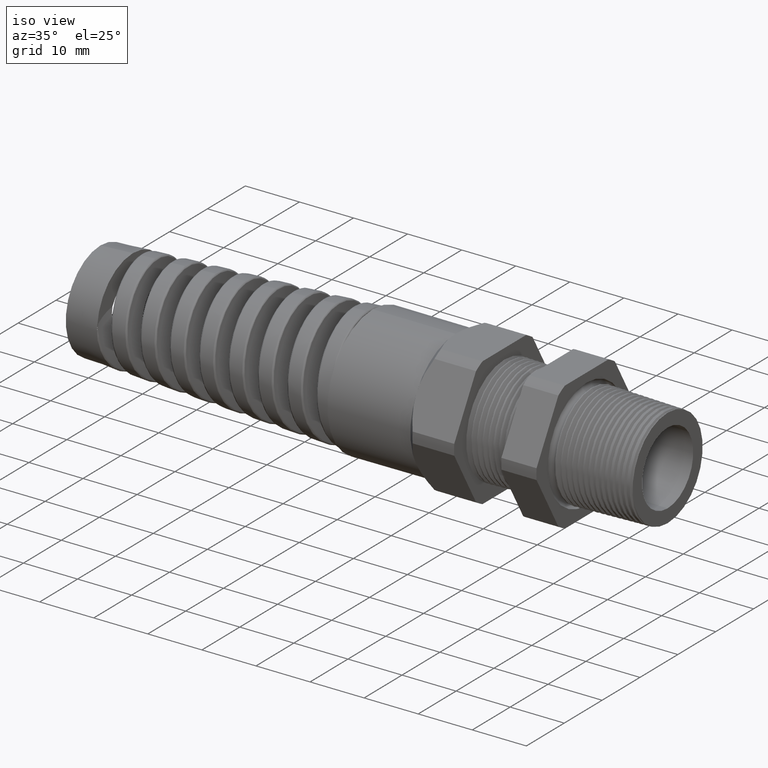
[diagram: clean part render]
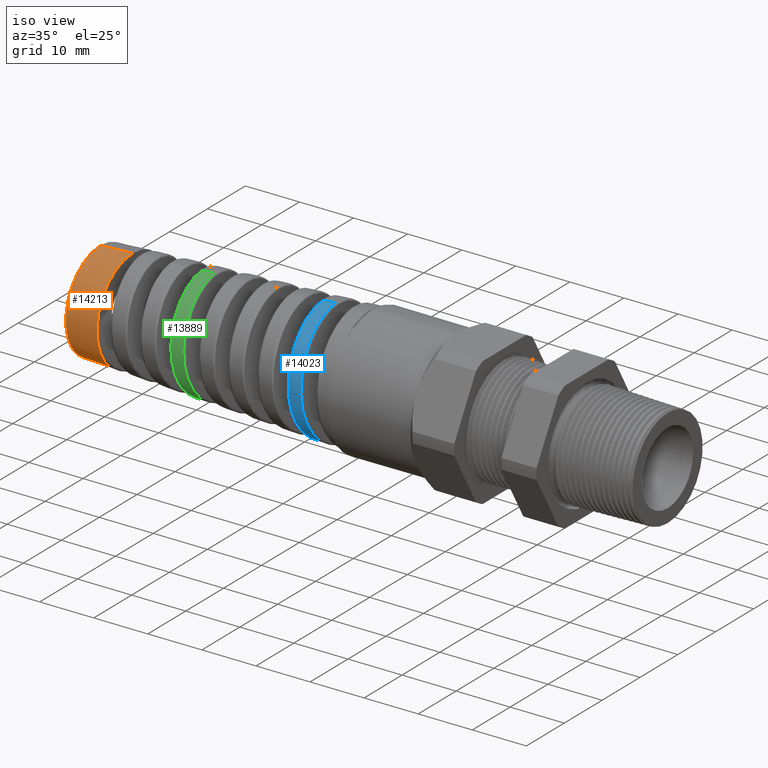
[diagram: same view with three faces highlighted in distinct colors, each labeled with its STEP entity id]
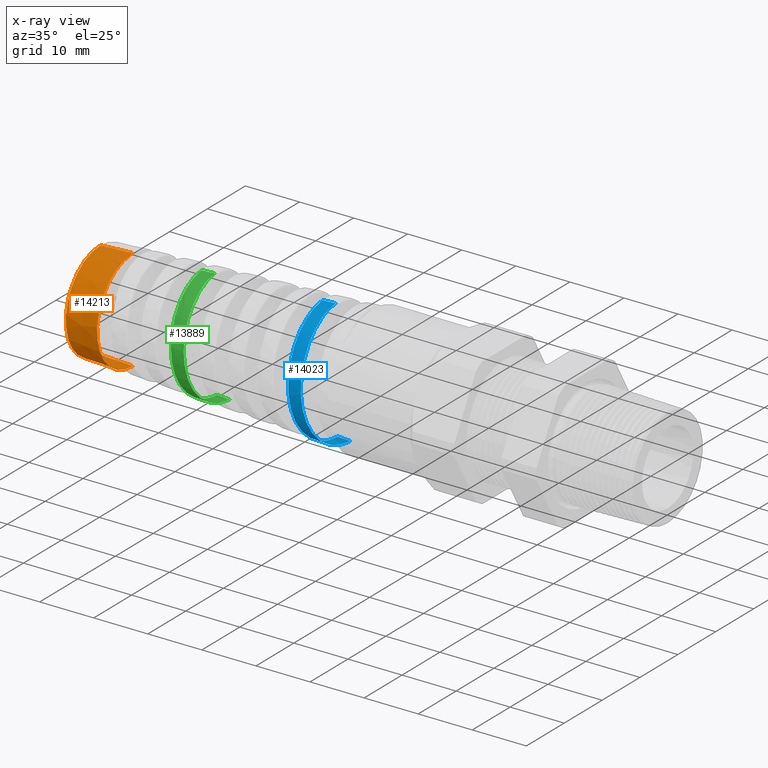
[diagram: x-ray of the same camera — body ghosted, the three highlighted faces saturated]
A machine part, iso view with three faces highlighted in distinct colors.
The next image is the same camera in x-ray (body ghosted, the three faces saturated) — at least one of them is partly hidden behind the body in this view.
Their STEP definitions:

[orange] entity #14213 — the highlighted conical surface has half-angle 3 deg.
#891 = CARTESIAN_POINT ( 'NONE',  ( -3.613780000000000200, -4.556107977781115500E-017, -0.3720344495207316100 ) ) ;
#3071 = CARTESIAN_POINT ( 'NONE',  ( -3.613780000000000200, -0.3666973055244234200, -0.06279106426332896300 ) ) ;
#3072 = DIRECTION ( 'NONE',  ( 0.0000000000000000000, 0.0000000000000000000, -1.000000000000000000 ) ) ;
#3073 = DIRECTION ( 'NONE',  ( 1.000000000000000000, 0.0000000000000000000, 0.0000000000000000000 ) ) ;
#3074 = CARTESIAN_POINT ( 'NONE',  ( -3.613780000000000200, 0.0000000000000000000, 0.0000000000000000000 ) ) ;
#3075 = AXIS2_PLACEMENT_3D ( 'NONE', #3074, #3073, #3072 ) ;
#3081 = CIRCLE ( 'NONE', #3075, 0.3720344495207378300 ) ;
#5181 = DIRECTION ( 'NONE',  ( 1.000000000000000000, 0.0000000000000000000, 0.0000000000000000000 ) ) ;
#5183 = CARTESIAN_POINT ( 'NONE',  ( -3.613780000000000200, 0.0000000000000000000, 0.0000000000000000000 ) ) ;
#5184 = AXIS2_PLACEMENT_3D ( 'NONE', #5183, #5181, #5559 ) ;
#5456 = DIRECTION ( 'NONE',  ( 0.9986295347545738300, 0.0000000000000000000, 0.05233595624294395300 ) ) ;
#5457 = VECTOR ( 'NONE', #5456, 39.37007874015748900 ) ;
#5458 = CARTESIAN_POINT ( 'NONE',  ( -3.613780000000000200, 0.0000000000000000000, 0.3720344495207316100 ) ) ;
#5459 = LINE ( 'NONE', #5458, #5457 ) ;
#5460 = CARTESIAN_POINT ( 'NONE',  ( -3.613780000000000200, 0.0000000000000000000, 0.3720344495207316100 ) ) ;
#5461 = DIRECTION ( 'NONE',  ( 0.0000000000000000000, 0.0000000000000000000, 1.000000000000000000 ) ) ;
#5462 = DIRECTION ( 'NONE',  ( -1.000000000000000000, 0.0000000000000000000, 0.0000000000000000000 ) ) ;
#5463 = CARTESIAN_POINT ( 'NONE',  ( -3.613780000000000200, 0.0000000000000000000, 0.0000000000000000000 ) ) ;
#5464 = AXIS2_PLACEMENT_3D ( 'NONE', #5463, #5462, #5461 ) ;
#5465 = CIRCLE ( 'NONE', #5464, 0.3720344495207316100 ) ;
#5502 = CONICAL_SURFACE ( 'NONE', #5184, 0.3720344495207316100, 0.05235987755983000100 ) ;
#5503 = FACE_OUTER_BOUND ( 'NONE', #14214, .T. ) ;
#5548 = DIRECTION ( 'NONE',  ( 0.9986295347545738300, -6.409306129323724800E-018, -0.05233595624294395300 ) ) ;
#5549 = VECTOR ( 'NONE', #5548, 39.37007874015748900 ) ;
#5550 = CARTESIAN_POINT ( 'NONE',  ( -3.613780000000000200, -4.556107977781115500E-017, -0.3720344495207316100 ) ) ;
#5551 = LINE ( 'NONE', #5550, #5549 ) ;
#5552 = CARTESIAN_POINT ( 'NONE',  ( -3.850000472440945600, 0.0000000000000000000, 0.3596546591389108700 ) ) ;
#5553 = CARTESIAN_POINT ( 'NONE',  ( -3.850000472440945600, -4.480303624455055900E-017, -0.3596546591389108700 ) ) ;
#5554 = DIRECTION ( 'NONE',  ( 0.0000000000000000000, 0.0000000000000000000, 1.000000000000000000 ) ) ;
#5555 = DIRECTION ( 'NONE',  ( -1.000000000000000000, 0.0000000000000000000, 0.0000000000000000000 ) ) ;
#5556 = CARTESIAN_POINT ( 'NONE',  ( -3.850000472440945600, 0.0000000000000000000, 0.0000000000000000000 ) ) ;
#5557 = AXIS2_PLACEMENT_3D ( 'NONE', #5556, #5555, #5554 ) ;
#5558 = CIRCLE ( 'NONE', #5557, 0.3596546591389108700 ) ;
#5559 = DIRECTION ( 'NONE',  ( 0.0000000000000000000, 0.0000000000000000000, 1.000000000000000000 ) ) ;
#6283 = VERTEX_POINT ( 'NONE', #891 ) ;
#13900 = EDGE_CURVE ( 'NONE', #13901, #6283, #3081, .T. ) ;
#13901 = VERTEX_POINT ( 'NONE', #3071 ) ;
#14195 = EDGE_CURVE ( 'NONE', #13901, #14196, #5465, .T. ) ;
#14196 = VERTEX_POINT ( 'NONE', #5460 ) ;
#14197 = ORIENTED_EDGE ( 'NONE', *, *, #14198, .F. ) ;
#14198 = EDGE_CURVE ( 'NONE', #14218, #14196, #5459, .T. ) ;
#14213 = ADVANCED_FACE ( 'NONE', ( #5503 ), #5502, .T. ) ;
#14214 = EDGE_LOOP ( 'NONE', ( #14215, #14219, #14221, #14222, #14197 ) ) ;
#14215 = ORIENTED_EDGE ( 'NONE', *, *, #14216, .F. ) ;
#14216 = EDGE_CURVE ( 'NONE', #14217, #14218, #5558, .T. ) ;
#14217 = VERTEX_POINT ( 'NONE', #5553 ) ;
#14218 = VERTEX_POINT ( 'NONE', #5552 ) ;
#14219 = ORIENTED_EDGE ( 'NONE', *, *, #14220, .T. ) ;
#14220 = EDGE_CURVE ( 'NONE', #14217, #6283, #5551, .T. ) ;
#14221 = ORIENTED_EDGE ( 'NONE', *, *, #13900, .F. ) ;
#14222 = ORIENTED_EDGE ( 'NONE', *, *, #14195, .T. ) ;

[blue] entity #14023 — the highlighted conical surface has half-angle 2.5 deg.
#2672 = CARTESIAN_POINT ( 'NONE',  ( -2.136958732337116200, -9.837559784406085300E-016, 0.4365138585742439600 ) ) ;
#2674 = DIRECTION ( 'NONE',  ( 0.9990482215818576900, 5.341834311772765600E-018, 0.04361938736533634700 ) ) ;
#2675 = VECTOR ( 'NONE', #2674, 39.37007874015748100 ) ;
#2676 = CARTESIAN_POINT ( 'NONE',  ( -1.369999999999999900, 5.755839955992558400E-017, 0.4699999999999998600 ) ) ;
#2677 = LINE ( 'NONE', #2676, #2675 ) ;
#2678 = CARTESIAN_POINT ( 'NONE',  ( -2.231331900771360600, 1.538719108245146800E-015, 0.4323934370551409900 ) ) ;
#3182 = CARTESIAN_POINT ( 'NONE',  ( -2.121162570605299000, -1.098488534835225200E-012, -0.4372035338897904400 ) ) ;
#3304 = CARTESIAN_POINT ( 'NONE',  ( -2.215164198628793500, -0.1930681999559965000, 0.3887457103996759800 ) ) ;
#3305 = CARTESIAN_POINT ( 'NONE',  ( -2.219810310005696500, -0.1400110124368382800, 0.4106334170682022200 ) ) ;
#3306 = CARTESIAN_POINT ( 'NONE',  ( -2.222096644440896700, -0.1128320769876093200, 0.4187895851010250400 ) ) ;
#3307 = CARTESIAN_POINT ( 'NONE',  ( -2.225542304219461500, -0.07112939013308872100, 0.4269942274725931400 ) ) ;
#3308 = CARTESIAN_POINT ( 'NONE',  ( -2.226693341524334200, -0.05707161816231418700, 0.4290525756093521700 ) ) ;
#3309 = CARTESIAN_POINT ( 'NONE',  ( -2.229010475305106100, -0.02863524671693102800, 0.4317821038072549000 ) ) ;
#3310 = CARTESIAN_POINT ( 'NONE',  ( -2.230177561496665500, -0.01423940330200604300, 0.4324438365963104700 ) ) ;
#3311 = CARTESIAN_POINT ( 'NONE',  ( -2.231331900771360600, 1.538719108245146800E-015, 0.4323934370551409900 ) ) ;
#3312 = B_SPLINE_CURVE_WITH_KNOTS ( 'NONE', 3,
 ( #3311, #3310, #3309, #3308, #3307, #3306, #3305, #3304, #3376, #3375, #3374, #3373, #3372, #3371, #3370, #3369, #3368, #3367, #3366, #3365, #3364, #3363, #3362, #3361, #3360, #3359, #3358, #3357, #3356, #3355, #3354, #3353, #3352, #3351, #3350, #3349, #3348, #3347, #3346, #3345, #3344, #3343, #3342, #3341, #3340, #3339, #3338, #3337, #3336 ),
 .UNSPECIFIED., .F., .F.,
 ( 4, 2, 2, 2, 2, 2, 2, 2, 2, 2, 2, 1, 2, 2, 2, 2, 2, 2, 2, 2, 2, 2, 2, 2, 4 ),
 ( 0.4070003021110117900, 0.4080960166227987100, 0.4091917311345855700, 0.4113831601581593400, 0.4135745891817331200, 0.4146703036935200400, 0.4157660182053069000, 0.4179574472288806700, 0.4201488762524544500, 0.4223403052760282300, 0.4234360197878150900, 0.4245317342996020000, 0.4256274488113889200, 0.4267231633231757800, 0.4289145923467495600, 0.4300103068585364700, 0.4311060213703233300, 0.4332974503938971100, 0.4343931649056840300, 0.4354888794174708900, 0.4376803084410446600, 0.4387760229528315800, 0.4398717374646185000, 0.4409674519764053600, 0.4420631664881922700 ),
 .UNSPECIFIED. ) ;
#3326 = DIRECTION ( 'NONE',  ( 0.9990482215818576900, 0.0000000000000000000, -0.04361938736533634700 ) ) ;
#3327 = VECTOR ( 'NONE', #3326, 39.37007874015748100 ) ;
#3328 = CARTESIAN_POINT ( 'NONE',  ( -1.369999999999999900, 0.0000000000000000000, -0.4699999999999998600 ) ) ;
#3329 = LINE ( 'NONE', #3328, #3327 ) ;
#3330 = CARTESIAN_POINT ( 'NONE',  ( -2.027124883345048400, -1.869557683998183800E-017, -0.4413093079845087900 ) ) ;
#3334 = B_SPLINE_CURVE_WITH_KNOTS ( 'NONE', 3,
 ( #3425, #3424, #3423, #3422, #3421, #3420, #3419, #3418, #3417, #3416, #3415, #3414, #3413, #3412, #3411, #3410, #3409, #3408, #3407, #3406, #3405, #3404, #3403, #3402, #3401, #3400, #3399, #3398, #3397, #3396, #3395, #3394, #3393, #3392, #3391, #3390, #3389, #3388, #3387, #3386, #3385, #3384, #3383, #3382, #3381, #3380, #3379 ),
 .UNSPECIFIED., .F., .F.,
 ( 4, 2, 2, 2, 2, 2, 2, 2, 2, 2, 2, 2, 2, 2, 2, 2, 2, 1, 2, 2, 2, 2, 2, 4 ),
 ( 0.04896264303005404300, 0.05007058619436918800, 0.05117852935868433300, 0.05339441568731462300, 0.05450235885162976700, 0.05561030201594491200, 0.05782618834457520200, 0.05893413150889034700, 0.06004207467320549200, 0.06225796100183578900, 0.06447384733046608600, 0.06558179049478123100, 0.06668973365909637600, 0.06890561998772668000, 0.07112150631635696900, 0.07333739264498725900, 0.07444533580930240400, 0.07555327897361756300, 0.07666122213793270800, 0.07776916530224786700, 0.07998505163087815700, 0.08109299479519330200, 0.08220093795950844700, 0.08441682428813875000 ),
 .UNSPECIFIED. ) ;
#3336 = CARTESIAN_POINT ( 'NONE',  ( -2.121162570605299000, -1.098488534835225200E-012, -0.4372035338897904400 ) ) ;
#3337 = CARTESIAN_POINT ( 'NONE',  ( -2.122307722575768700, -0.01428404826497243700, -0.4371535354749513900 ) ) ;
#3338 = CARTESIAN_POINT ( 'NONE',  ( -2.123461994771173300, -0.02867392872591293500, -0.4363940078195490700 ) ) ;
#3339 = CARTESIAN_POINT ( 'NONE',  ( -2.125747301005961500, -0.05700648581398074000, -0.4335031345675646200 ) ) ;
#3340 = CARTESIAN_POINT ( 'NONE',  ( -2.126884675444345300, -0.07102855163806357000, -0.4313745148217295000 ) ) ;
#3341 = CARTESIAN_POINT ( 'NONE',  ( -2.129158968301915000, -0.09878822629707476000, -0.4257735857633613300 ) ) ;
#3342 = CARTESIAN_POINT ( 'NONE',  ( -2.130295773213905200, -0.1125258418946660600, -0.4223012641926330900 ) ) ;
#3343 = CARTESIAN_POINT ( 'NONE',  ( -2.132577812223247300, -0.1397125792379831600, -0.4139973249003729400 ) ) ;
#3344 = CARTESIAN_POINT ( 'NONE',  ( -2.133728226000509500, -0.1532179816174283900, -0.4091416802657383800 ) ) ;
#3345 = CARTESIAN_POINT ( 'NONE',  ( -2.137177767931223800, -0.1928857375334525100, -0.3926216036488929300 ) ) ;
#3346 = CARTESIAN_POINT ( 'NONE',  ( -2.139445409813881800, -0.2178645187509352400, -0.3791938828618138200 ) ) ;
#3347 = CARTESIAN_POINT ( 'NONE',  ( -2.142864488760610500, -0.2531960935492967900, -0.3555444922316504100 ) ) ;
#3348 = CARTESIAN_POINT ( 'NONE',  ( -2.144006879427342600, -0.2646146623897422400, -0.3470725442497117900 ) ) ;
#3349 = CARTESIAN_POINT ( 'NONE',  ( -2.146306215823962700, -0.2867141772961570600, -0.3289189545009284000 ) ) ;
#3350 = CARTESIAN_POINT ( 'NONE',  ( -2.147461462260319600, -0.2973700383350258400, -0.3192455449343781800 ) ) ;
#3351 = CARTESIAN_POINT ( 'NONE',  ( -2.150892683788183700, -0.3275321031544757800, -0.2890433369855546800 ) ) ;
#3352 = CARTESIAN_POINT ( 'NONE',  ( -2.153159919452925400, -0.3454954461764356800, -0.2671508079096361300 ) ) ;
#3353 = CARTESIAN_POINT ( 'NONE',  ( -2.156596326336722900, -0.3692200728741776300, -0.2316795835015423000 ) ) ;
#3354 = CARTESIAN_POINT ( 'NONE',  ( -2.157753748041283200, -0.3766226371892531500, -0.2193456884420002800 ) ) ;
#3355 = CARTESIAN_POINT ( 'NONE',  ( -2.160057312630246300, -0.3901129738775704900, -0.1941169667445965500 ) ) ;
#3356 = CARTESIAN_POINT ( 'NONE',  ( -2.161200475665919100, -0.3961908378663421800, -0.1812598879046923600 ) ) ;
#3357 = CARTESIAN_POINT ( 'NONE',  ( -2.164623249965210500, -0.4124756207163128300, -0.1419814017503348000 ) ) ;
#3358 = CARTESIAN_POINT ( 'NONE',  ( -2.166896283676640300, -0.4207522629680438600, -0.1148594768215820400 ) ) ;
#3359 = CARTESIAN_POINT ( 'NONE',  ( -2.170360394199032600, -0.4291717028383267900, -0.07273244096105110900 ) ) ;
#3360 = CARTESIAN_POINT ( 'NONE',  ( -2.171517275481169100, -0.4312836674185713800, -0.05853042810672694200 ) ) ;
#3361 = CARTESIAN_POINT ( 'NONE',  ( -2.173809867068220200, -0.4340851861067502300, -0.03023886372500571600 ) ) ;
#3362 = CARTESIAN_POINT ( 'NONE',  ( -2.176091333293166400, -0.4354910292023556100, -0.001932762701584900800 ) ) ;
#3363 = CARTESIAN_POINT ( 'NONE',  ( -2.178375429326629300, -0.4341367655323870600, 0.02640009026625405500 ) ) ;
#3364 = CARTESIAN_POINT ( 'NONE',  ( -2.180672662773507100, -0.4313785164358923100, 0.05474559502213508600 ) ) ;
#3365 = CARTESIAN_POINT ( 'NONE',  ( -2.181834296280764600, -0.4292788729023684900, 0.06900237557675999200 ) ) ;
#3366 = CARTESIAN_POINT ( 'NONE',  ( -2.185294272913224800, -0.4209437970030093800, 0.1110351096633477700 ) ) ;
#3367 = CARTESIAN_POINT ( 'NONE',  ( -2.187572040177133500, -0.4127218316210615700, 0.1381514525789061500 ) ) ;
#3368 = CARTESIAN_POINT ( 'NONE',  ( -2.192153015033352100, -0.3910528523841704200, 0.1906019694790175300 ) ) ;
#3369 = CARTESIAN_POINT ( 'NONE',  ( -2.194480288102528900, -0.3774189982537751700, 0.2161474475943709900 ) ) ;
#3370 = CARTESIAN_POINT ( 'NONE',  ( -2.199073210008148500, -0.3458622319635263300, 0.2633820683365656300 ) ) ;
#3371 = CARTESIAN_POINT ( 'NONE',  ( -2.201353600711398100, -0.3279053280312105900, 0.2852876916856335600 ) ) ;
#3372 = CARTESIAN_POINT ( 'NONE',  ( -2.204811509589987400, -0.2976633952822102000, 0.3155417360831688800 ) ) ;
#3373 = CARTESIAN_POINT ( 'NONE',  ( -2.205975966352819100, -0.2869754500334816800, 0.3252248025945172500 ) ) ;
#3374 = CARTESIAN_POINT ( 'NONE',  ( -2.208282935200708500, -0.2649147969889744100, 0.3433058598976183600 ) ) ;
#3375 = CARTESIAN_POINT ( 'NONE',  ( -2.209430192852991600, -0.2535046306975849400, 0.3517498141931059700 ) ) ;
#3376 = CARTESIAN_POINT ( 'NONE',  ( -2.212870076689168000, -0.2181588980338261800, 0.3753276114577912500 ) ) ;
#3379 = CARTESIAN_POINT ( 'NONE',  ( -2.136958732337116200, -9.837559784406085300E-016, 0.4365138585742439600 ) ) ;
#3380 = CARTESIAN_POINT ( 'NONE',  ( -2.134656793890712400, -0.02874241036669041700, 0.4366143633773312300 ) ) ;
#3381 = CARTESIAN_POINT ( 'NONE',  ( -2.132375965640470800, -0.05720861251445783600, 0.4339023058148316900 ) ) ;
#3382 = CARTESIAN_POINT ( 'NONE',  ( -2.128927653978430500, -0.09949002989187799600, 0.4256272656652945200 ) ) ;
#3383 = CARTESIAN_POINT ( 'NONE',  ( -2.127767678971979900, -0.1135867074436062400, 0.4221393029328688900 ) ) ;
#3384 = CARTESIAN_POINT ( 'NONE',  ( -2.125457324680314100, -0.1412522914842159500, 0.4138109190676658200 ) ) ;
#3385 = CARTESIAN_POINT ( 'NONE',  ( -2.124310494670007500, -0.1547804168655044200, 0.4089921973936079300 ) ) ;
#3386 = CARTESIAN_POINT ( 'NONE',  ( -2.120876789861095600, -0.1944750170306506200, 0.3926278278121125300 ) ) ;
#3387 = CARTESIAN_POINT ( 'NONE',  ( -2.118596229444724300, -0.2197602458927661900, 0.3791923459347784600 ) ) ;
#3388 = CARTESIAN_POINT ( 'NONE',  ( -2.115128342424466500, -0.2558623032841407200, 0.3551351476157693600 ) ) ;
#3389 = CARTESIAN_POINT ( 'NONE',  ( -2.113972077662006600, -0.2675089414644431500, 0.3465061185115478300 ) ) ;
#3390 = CARTESIAN_POINT ( 'NONE',  ( -2.111679898248865600, -0.2897062429824847600, 0.3283068672683224200 ) ) ;
#3391 = CARTESIAN_POINT ( 'NONE',  ( -2.109397884402736300, -0.3109148889582484300, 0.3090963309736217700 ) ) ;
#3392 = CARTESIAN_POINT ( 'NONE',  ( -2.107112668372868900, -0.3301679949133344300, 0.2878881682755267100 ) ) ;
#3393 = CARTESIAN_POINT ( 'NONE',  ( -2.104815077273388500, -0.3484259434638702900, 0.2656646636174854200 ) ) ;
#3394 = CARTESIAN_POINT ( 'NONE',  ( -2.103653758980741400, -0.3570986802558210300, 0.2539771616360894700 ) ) ;
#3395 = CARTESIAN_POINT ( 'NONE',  ( -2.100200334972904600, -0.3811221165285924600, 0.2180037265034783800 ) ) ;
#3396 = CARTESIAN_POINT ( 'NONE',  ( -2.097931149678491400, -0.3945873139617245300, 0.1927610529025282300 ) ) ;
#3397 = CARTESIAN_POINT ( 'NONE',  ( -2.093360944467690400, -0.4165136922597328900, 0.1398114420984649900 ) ) ;
#3398 = CARTESIAN_POINT ( 'NONE',  ( -2.091038625318244900, -0.4249888030181142600, 0.1118278649121349200 ) ) ;
#3399 = CARTESIAN_POINT ( 'NONE',  ( -2.086465996877546700, -0.4361284481403554500, 0.05557037915870628000 ) ) ;
#3400 = CARTESIAN_POINT ( 'NONE',  ( -2.084200419724224800, -0.4389253031302633400, 0.02710567940708192100 ) ) ;
#3401 = CARTESIAN_POINT ( 'NONE',  ( -2.080760206251468500, -0.4389086448892992000, -0.01609575012736388900 ) ) ;
#3402 = CARTESIAN_POINT ( 'NONE',  ( -2.079601785541277600, -0.4381842269427155800, -0.03063964945969502300 ) ) ;
#3403 = CARTESIAN_POINT ( 'NONE',  ( -2.077307940638913700, -0.4353347586073724200, -0.05929417698684726800 ) ) ;
#3404 = CARTESIAN_POINT ( 'NONE',  ( -2.076167509434948800, -0.4332153313711800700, -0.07346800834226358000 ) ) ;
#3405 = CARTESIAN_POINT ( 'NONE',  ( -2.072751383621070300, -0.4248159922725760500, -0.1155375681952718800 ) ) ;
#3406 = CARTESIAN_POINT ( 'NONE',  ( -2.070478359148415900, -0.4164928950314538100, -0.1430385882907615500 ) ) ;
#3407 = CARTESIAN_POINT ( 'NONE',  ( -2.065870212412094900, -0.3942901283984731100, -0.1965668389451727400 ) ) ;
#3408 = CARTESIAN_POINT ( 'NONE',  ( -2.063601374368688300, -0.3807455028992607900, -0.2218154729835852500 ) ) ;
#3409 = CARTESIAN_POINT ( 'NONE',  ( -2.060188584508322300, -0.3569054817317701700, -0.2574974546097465500 ) ) ;
#3410 = CARTESIAN_POINT ( 'NONE',  ( -2.059050045816491500, -0.3483672857217057200, -0.2690236487292479400 ) ) ;
#3411 = CARTESIAN_POINT ( 'NONE',  ( -2.056759533741304000, -0.3300801475353079600, -0.2913221306937193700 ) ) ;
#3412 = CARTESIAN_POINT ( 'NONE',  ( -2.055605396432954800, -0.3203070226414257400, -0.3021062073771059200 ) ) ;
#3413 = CARTESIAN_POINT ( 'NONE',  ( -2.052179469950395700, -0.2898005030338328700, -0.3326147237467241300 ) ) ;
#3414 = CARTESIAN_POINT ( 'NONE',  ( -2.049918365015718000, -0.2677024292697435200, -0.3507642945020481000 ) ) ;
#3415 = CARTESIAN_POINT ( 'NONE',  ( -2.046499217616959900, -0.2319375796244661200, -0.3747250791161077500 ) ) ;
#3416 = CARTESIAN_POINT ( 'NONE',  ( -2.045350826964045700, -0.2195248116294248900, -0.3821914410515525100 ) ) ;
#3417 = CARTESIAN_POINT ( 'NONE',  ( -2.043055904948774000, -0.1940249459088689600, -0.3958586218536132600 ) ) ;
#3418 = CARTESIAN_POINT ( 'NONE',  ( -2.041917581350376000, -0.1810355635533523200, -0.4020142036646538500 ) ) ;
#3419 = CARTESIAN_POINT ( 'NONE',  ( -2.038511380859056000, -0.1413723045529819700, -0.4185084571990221300 ) ) ;
#3420 = CARTESIAN_POINT ( 'NONE',  ( -2.036251874013694300, -0.1140098319180960500, -0.4268930507334642900 ) ) ;
#3421 = CARTESIAN_POINT ( 'NONE',  ( -2.032816736471808400, -0.07155724549186144600, -0.4354567482603172200 ) ) ;
#3422 = CARTESIAN_POINT ( 'NONE',  ( -2.031665698809913300, -0.05718422362853181600, -0.4376246998986974600 ) ) ;
#3423 = CARTESIAN_POINT ( 'NONE',  ( -2.029389127566214100, -0.02859303278864821700, -0.4405173687808347500 ) ) ;
#3424 = CARTESIAN_POINT ( 'NONE',  ( -2.028256955003117300, -0.01429666241641783800, -0.4412598806684776000 ) ) ;
#3425 = CARTESIAN_POINT ( 'NONE',  ( -2.027124883345048400, -1.869557683998183800E-017, -0.4413093079845087900 ) ) ;
#4058 = FACE_OUTER_BOUND ( 'NONE', #13936, .T. ) ;
#4079 = DIRECTION ( 'NONE',  ( 0.0000000000000000000, 0.0000000000000000000, -1.000000000000000000 ) ) ;
#4080 = DIRECTION ( 'NONE',  ( 1.000000000000000000, 0.0000000000000000000, 0.0000000000000000000 ) ) ;
#4081 = CARTESIAN_POINT ( 'NONE',  ( -1.369999999999999900, 0.0000000000000000000, 0.0000000000000000000 ) ) ;
#4082 = AXIS2_PLACEMENT_3D ( 'NONE', #4081, #4080, #4079 ) ;
#4083 = CONICAL_SURFACE ( 'NONE', #4082, 0.4699999999999998600, 0.04363323129985858400 ) ;
#13806 = VERTEX_POINT ( 'NONE', #2678 ) ;
#13810 = EDGE_CURVE ( 'NONE', #13806, #13811, #2677, .T. ) ;
#13811 = VERTEX_POINT ( 'NONE', #2672 ) ;
#13916 = VERTEX_POINT ( 'NONE', #3182 ) ;
#13923 = VERTEX_POINT ( 'NONE', #3330 ) ;
#13925 = EDGE_CURVE ( 'NONE', #13916, #13923, #3329, .T. ) ;
#13936 = EDGE_LOOP ( 'NONE', ( #13938, #13940, #13943, #13945 ) ) ;
#13938 = ORIENTED_EDGE ( 'NONE', *, *, #13810, .F. ) ;
#13940 = ORIENTED_EDGE ( 'NONE', *, *, #13941, .T. ) ;
#13941 = EDGE_CURVE ( 'NONE', #13806, #13916, #3312, .T. ) ;
#13943 = ORIENTED_EDGE ( 'NONE', *, *, #13925, .T. ) ;
#13945 = ORIENTED_EDGE ( 'NONE', *, *, #13947, .T. ) ;
#13947 = EDGE_CURVE ( 'NONE', #13923, #13811, #3334, .T. ) ;
#14023 = ADVANCED_FACE ( 'NONE', ( #4058 ), #4083, .T. ) ;

[green] entity #13889 — the highlighted conical surface has half-angle 2.5 deg.
#897 = CARTESIAN_POINT ( 'NONE',  ( -3.015623017232441900, -5.831449614210051100E-013, 0.3981505473956802300 ) ) ;
#2384 = CARTESIAN_POINT ( 'NONE',  ( -3.002507505358122100, 7.099852160905806800E-016, -0.3987231830108408600 ) ) ;
#2487 = CARTESIAN_POINT ( 'NONE',  ( -2.905790805796355500, -1.187098523005458100E-015, -0.4029459253087068800 ) ) ;
#2535 = CARTESIAN_POINT ( 'NONE',  ( -3.112674082994124200, -4.916453930915841200E-013, 0.3939132063542492000 ) ) ;
#2640 = DIRECTION ( 'NONE',  ( 0.9990482215818576900, 5.341834311772765600E-018, 0.04361938736533634700 ) ) ;
#2641 = VECTOR ( 'NONE', #2640, 39.37007874015748100 ) ;
#2642 = CARTESIAN_POINT ( 'NONE',  ( -1.369999999999999900, 5.755839955992558400E-017, 0.4699999999999998600 ) ) ;
#2643 = LINE ( 'NONE', #2642, #2641 ) ;
#2807 = LINE ( 'NONE', #2889, #2888 ) ;
#2887 = DIRECTION ( 'NONE',  ( 0.9990482215818576900, 0.0000000000000000000, -0.04361938736533634700 ) ) ;
#2888 = VECTOR ( 'NONE', #2887, 39.37007874015748100 ) ;
#2889 = CARTESIAN_POINT ( 'NONE',  ( -1.369999999999999900, 0.0000000000000000000, -0.4699999999999998600 ) ) ;
#3056 = FACE_OUTER_BOUND ( 'NONE', #13893, .T. ) ;
#3076 = DIRECTION ( 'NONE',  ( 0.0000000000000000000, 0.0000000000000000000, -1.000000000000000000 ) ) ;
#3077 = DIRECTION ( 'NONE',  ( 1.000000000000000000, 0.0000000000000000000, 0.0000000000000000000 ) ) ;
#3078 = CARTESIAN_POINT ( 'NONE',  ( -1.369999999999999900, 0.0000000000000000000, 0.0000000000000000000 ) ) ;
#3079 = AXIS2_PLACEMENT_3D ( 'NONE', #3078, #3077, #3076 ) ;
#3080 = CONICAL_SURFACE ( 'NONE', #3079, 0.4699999999999998600, 0.04363323129985858400 ) ;
#3299 = CARTESIAN_POINT ( 'NONE',  ( -3.002507505358122100, 7.099852160905806800E-016, -0.3987231830108408600 ) ) ;
#3301 = CARTESIAN_POINT ( 'NONE',  ( -3.004809054596935300, -0.02615713505485879300, -0.3986226952009240300 ) ) ;
#3302 = CARTESIAN_POINT ( 'NONE',  ( -3.007078818464436100, -0.05196177252205876800, -0.3959641682218144600 ) ) ;
#3588 = CARTESIAN_POINT ( 'NONE',  ( -3.010486253818110300, -0.08992528219363346600, -0.3883073416617648400 ) ) ;
#3589 = CARTESIAN_POINT ( 'NONE',  ( -3.011623622219030200, -0.1024681156633819000, -0.3851390662756928300 ) ) ;
#3590 = CARTESIAN_POINT ( 'NONE',  ( -3.013912603377991500, -0.1273249069456007800, -0.3775454630383508500 ) ) ;
#3591 = CARTESIAN_POINT ( 'NONE',  ( -3.015069544900292000, -0.1396930360060239800, -0.3730925510559143200 ) ) ;
#3592 = CARTESIAN_POINT ( 'NONE',  ( -3.018507391380403200, -0.1757038759073390500, -0.3580895384588160300 ) ) ;
#3593 = CARTESIAN_POINT ( 'NONE',  ( -3.020770473977438800, -0.1984554020044606000, -0.3458759901031067100 ) ) ;
#3594 = CARTESIAN_POINT ( 'NONE',  ( -3.025331291177312900, -0.2414744703595204400, -0.3170905065364678100 ) ) ;
#3595 = CARTESIAN_POINT ( 'NONE',  ( -3.027648672401014100, -0.2618693692001420900, -0.3003331983476809100 ) ) ;
#3596 = CARTESIAN_POINT ( 'NONE',  ( -3.032216290794122600, -0.2984443432062438000, -0.2637195787036587500 ) ) ;
#3597 = CARTESIAN_POINT ( 'NONE',  ( -3.034483261216622800, -0.3148387407795329400, -0.2437667740931223600 ) ) ;
#3598 = CARTESIAN_POINT ( 'NONE',  ( -3.037926914833352300, -0.3365380229343727900, -0.2113308645538632400 ) ) ;
#3599 = CARTESIAN_POINT ( 'NONE',  ( -3.039085824431529700, -0.3432991926203722800, -0.2000589851520174500 ) ) ;
#3600 = CARTESIAN_POINT ( 'NONE',  ( -3.041380636398207700, -0.3555518397596405000, -0.1771475470843341900 ) ) ;
#3601 = CARTESIAN_POINT ( 'NONE',  ( -3.042522293745320900, -0.3610831267228704100, -0.1654558174023796300 ) ) ;
#3602 = CARTESIAN_POINT ( 'NONE',  ( -3.045945385805840300, -0.3759244508473323900, -0.1296869530237891300 ) ) ;
#3603 = CARTESIAN_POINT ( 'NONE',  ( -3.048229967891932900, -0.3835156816063828900, -0.1048390843229714500 ) ) ;
#3604 = CARTESIAN_POINT ( 'NONE',  ( -3.052850131381302100, -0.3937581439742212100, -0.05357257072959873600 ) ) ;
#3605 = CARTESIAN_POINT ( 'NONE',  ( -3.055126502695343100, -0.3962900270231863300, -0.02783655964105906700 ) ) ;
#3606 = CARTESIAN_POINT ( 'NONE',  ( -3.058556665400407900, -0.3963362959190983000, 0.01091059820871072100 ) ) ;
#3607 = CARTESIAN_POINT ( 'NONE',  ( -3.059702373641668900, -0.3957219429457384800, 0.02385037330209694200 ) ) ;
#3608 = CARTESIAN_POINT ( 'NONE',  ( -3.062007964910236500, -0.3932010189725196300, 0.04977844544074101800 ) ) ;
#3609 = CARTESIAN_POINT ( 'NONE',  ( -3.063168470810688300, -0.3912844934529516900, 0.06276926116414058300 ) ) ;
#3610 = CARTESIAN_POINT ( 'NONE',  ( -3.066614054119400000, -0.3837152153660476900, 0.1009564215097200500 ) ) ;
#3611 = CARTESIAN_POINT ( 'NONE',  ( -3.068889673547005300, -0.3762410445936161300, 0.1256660122835548400 ) ) ;
#3612 = CARTESIAN_POINT ( 'NONE',  ( -3.072337035068951400, -0.3613999655777889700, 0.1616052246214783600 ) ) ;
#3613 = CARTESIAN_POINT ( 'NONE',  ( -3.073497362622002800, -0.3558125666107110900, 0.1734525104272657800 ) ) ;
#3614 = CARTESIAN_POINT ( 'NONE',  ( -3.075810676806517700, -0.3435214911319637300, 0.1964724767144847000 ) ) ;
#3615 = CARTESIAN_POINT ( 'NONE',  ( -3.076958585440162400, -0.3368526616923054900, 0.2075953622328116100 ) ) ;
#3616 = CARTESIAN_POINT ( 'NONE',  ( -3.080394984518994000, -0.3153213012920297900, 0.2398340007526165400 ) ) ;
#3617 = CARTESIAN_POINT ( 'NONE',  ( -3.082676345409510100, -0.2989484197655639100, 0.2598304828530608700 ) ) ;
#3618 = CARTESIAN_POINT ( 'NONE',  ( -3.086151759896634600, -0.2712743803387524500, 0.2875094391301670800 ) ) ;
#3619 = CARTESIAN_POINT ( 'NONE',  ( -3.087314044715224100, -0.2615621073683198100, 0.2963012293784316200 ) ) ;
#3620 = CARTESIAN_POINT ( 'NONE',  ( -3.089615792263952900, -0.2415118923782553500, 0.3127327519805995800 ) ) ;
#3621 = CARTESIAN_POINT ( 'NONE',  ( -3.090761055331327600, -0.2311284506748278700, 0.3204192736580544500 ) ) ;
#3622 = CARTESIAN_POINT ( 'NONE',  ( -3.093052764794597100, -0.2096544460947802100, 0.3347459856929435600 ) ) ;
#3623 = CARTESIAN_POINT ( 'NONE',  ( -3.094199175016873100, -0.1985638889164310400, 0.3413861902447243300 ) ) ;
#3624 = CARTESIAN_POINT ( 'NONE',  ( -3.096504961091962400, -0.1756647653609184900, 0.3536022824007995500 ) ) ;
#3625 = CARTESIAN_POINT ( 'NONE',  ( -3.097670876333852500, -0.1637871455153439800, 0.3592039997595853900 ) ) ;
#3626 = CARTESIAN_POINT ( 'NONE',  ( -3.101145524883691900, -0.1276620505787973400, 0.3740926891795666700 ) ) ;
#3627 = CARTESIAN_POINT ( 'NONE',  ( -3.103431937517732400, -0.1029230582634511600, 0.3815251294671686600 ) ) ;
#3628 = CARTESIAN_POINT ( 'NONE',  ( -3.108031070895940700, -0.05216801444381570500, 0.3915032047873768200 ) ) ;
#3629 = CARTESIAN_POINT ( 'NONE',  ( -3.110368034999929900, -0.02589262779163597300, 0.3940138905840358500 ) ) ;
#3630 = CARTESIAN_POINT ( 'NONE',  ( -3.112674082994124200, -4.916453930915841200E-013, 0.3939132063542492000 ) ) ;
#3632 = B_SPLINE_CURVE_WITH_KNOTS ( 'NONE', 3,
 ( #3630, #3629, #3628, #3627, #3626, #3625, #3624, #3623, #3622, #3621, #3620, #3619, #3618, #3617, #3616, #3615, #3614, #3613, #3612, #3611, #3610, #3609, #3608, #3607, #3606, #3605, #3604, #3603, #3602, #3601, #3600, #3599, #3598, #3597, #3596, #3595, #3594, #3593, #3592, #3591, #3590, #3589, #3588, #3302, #3301, #3299 ),
 .UNSPECIFIED., .F., .F.,
 ( 4, 2, 2, 2, 2, 2, 2, 2, 2, 2, 2, 2, 2, 2, 2, 2, 2, 2, 2, 2, 2, 2, 4 ),
 ( 0.1404559393383584300, 0.1424531221959639000, 0.1444503050535693700, 0.1454488964823721100, 0.1464474879111748500, 0.1474460793399775800, 0.1484446707687803200, 0.1504418536263857900, 0.1514404450551885300, 0.1524390364839912600, 0.1544362193415967400, 0.1554348107703994700, 0.1564334021992022100, 0.1584305850568076500, 0.1604277679144131300, 0.1614263593432158600, 0.1624249507720186000, 0.1644221336296240500, 0.1664193164872295200, 0.1684164993448349900, 0.1694150907736377300, 0.1704136822024404600, 0.1724108650600459400 ),
 .UNSPECIFIED. ) ;
#3635 = CARTESIAN_POINT ( 'NONE',  ( -2.989194328975055500, -0.2740680971293941700, 0.2906905377799917100 ) ) ;
#3636 = CARTESIAN_POINT ( 'NONE',  ( -2.986908655393843300, -0.2925325616211838000, 0.2722475305226352300 ) ) ;
#3637 = CARTESIAN_POINT ( 'NONE',  ( -2.985765830752062900, -0.3013205118046491400, 0.2625680186172321700 ) ) ;
#3638 = CARTESIAN_POINT ( 'NONE',  ( -2.983468674643964000, -0.3179907353395917100, 0.2422767938506078200 ) ) ;
#3639 = CARTESIAN_POINT ( 'NONE',  ( -2.982308261555133700, -0.3259075662817598200, 0.2316062507148989900 ) ) ;
#3640 = CARTESIAN_POINT ( 'NONE',  ( -2.978858021988934900, -0.3478177981563678200, 0.1987945516297129900 ) ) ;
#3641 = CARTESIAN_POINT ( 'NONE',  ( -2.976585159304076600, -0.3601056136331500800, 0.1757617021223768800 ) ) ;
#3642 = CARTESIAN_POINT ( 'NONE',  ( -2.972009929992452700, -0.3801194160217636900, 0.1274254585682291800 ) ) ;
#3643 = CARTESIAN_POINT ( 'NONE',  ( -2.969690887409044400, -0.3878512551897523300, 0.1018852119114144100 ) ) ;
#3644 = CARTESIAN_POINT ( 'NONE',  ( -2.965122487050434200, -0.3980108130988792600, 0.05055942800268272600 ) ) ;
#3645 = CARTESIAN_POINT ( 'NONE',  ( -2.962853323524604800, -0.4005635514891672200, 0.02458006772879306100 ) ) ;
#3646 = CARTESIAN_POINT ( 'NONE',  ( -2.959408738202382600, -0.4005448824425673100, -0.01486520483912952600 ) ) ;
#3647 = CARTESIAN_POINT ( 'NONE',  ( -2.958250355751880000, -0.3998820409270720200, -0.02813645993233297400 ) ) ;
#3648 = CARTESIAN_POINT ( 'NONE',  ( -2.955959372047687300, -0.3972804917555014000, -0.05427412136032641600 ) ) ;
#3649 = CARTESIAN_POINT ( 'NONE',  ( -2.954820838824983000, -0.3953460525684170400, -0.06720572829288779000 ) ) ;
#3650 = CARTESIAN_POINT ( 'NONE',  ( -2.951407934770157400, -0.3876790461354687700, -0.1055953628693669700 ) ) ;
#3651 = CARTESIAN_POINT ( 'NONE',  ( -2.949128875953450600, -0.3800690613446941500, -0.1307284855515918900 ) ) ;
#3652 = CARTESIAN_POINT ( 'NONE',  ( -2.944520354605385300, -0.3598154977566355200, -0.1795457333088403600 ) ) ;
#3653 = CARTESIAN_POINT ( 'NONE',  ( -2.942254887541824200, -0.3474577731327790400, -0.2025829484234504000 ) ) ;
#3654 = CARTESIAN_POINT ( 'NONE',  ( -2.938845419558050200, -0.3256979564929828300, -0.2351504620622276200 ) ) ;
#3655 = CARTESIAN_POINT ( 'NONE',  ( -2.937706956655276300, -0.3179035960084447000, -0.2456725111645038400 ) ) ;
#3656 = CARTESIAN_POINT ( 'NONE',  ( -2.935414566191471200, -0.3012063400693152900, -0.2660315975972945000 ) ) ;
#3657 = CARTESIAN_POINT ( 'NONE',  ( -2.934259892229608400, -0.2922908776000966400, -0.2758684639557758000 ) ) ;
#3658 = CARTESIAN_POINT ( 'NONE',  ( -2.930833072932703200, -0.2644618427657083900, -0.3037003042358381000 ) ) ;
#3659 = CARTESIAN_POINT ( 'NONE',  ( -2.928574494054441600, -0.2442972780537536200, -0.3202654703132433200 ) ) ;
#3660 = CARTESIAN_POINT ( 'NONE',  ( -2.925158810902945400, -0.2116498659254164000, -0.3421411740639223600 ) ) ;
#3661 = CARTESIAN_POINT ( 'NONE',  ( -2.924010135002554900, -0.2003109053027017600, -0.3489622142104792900 ) ) ;
#3662 = CARTESIAN_POINT ( 'NONE',  ( -2.921716165303209800, -0.1770525934274625700, -0.3614305343923086000 ) ) ;
#3663 = CARTESIAN_POINT ( 'NONE',  ( -2.920577396435117400, -0.1652032284674687100, -0.3670478704385271600 ) ) ;
#3664 = CARTESIAN_POINT ( 'NONE',  ( -2.917169874532490800, -0.1290152357265172100, -0.3821035408108238200 ) ) ;
#3665 = CARTESIAN_POINT ( 'NONE',  ( -2.914912069993425000, -0.1040424690244366500, -0.3897622881274715500 ) ) ;
#3666 = CARTESIAN_POINT ( 'NONE',  ( -2.911480584174509700, -0.06528478998869036200, -0.3975888405360162300 ) ) ;
#3667 = CARTESIAN_POINT ( 'NONE',  ( -2.910331515690399500, -0.05217602154642397200, -0.3995687615497584000 ) ) ;
#3668 = CARTESIAN_POINT ( 'NONE',  ( -2.908055995775235700, -0.02609186252672551800, -0.4022148481317195400 ) ) ;
#3669 = CARTESIAN_POINT ( 'NONE',  ( -2.906923394545335400, -0.01304705468075479500, -0.4028964754159987700 ) ) ;
#3670 = CARTESIAN_POINT ( 'NONE',  ( -2.905790805796355500, -1.187098523005458100E-015, -0.4029459253087068800 ) ) ;
#3671 = B_SPLINE_CURVE_WITH_KNOTS ( 'NONE', 3,
 ( #3670, #3669, #3668, #3667, #3666, #3665, #3664, #3663, #3662, #3661, #3660, #3659, #3658, #3657, #3656, #3655, #3654, #3653, #3652, #3651, #3650, #3649, #3648, #3647, #3646, #3645, #3644, #3643, #3642, #3641, #3640, #3639, #3638, #3637, #3636, #3635, #3709, #3708, #3707, #3706, #3705, #3704, #3703, #3702, #3701, #3700, #3699, #3698 ),
 .UNSPECIFIED., .F., .F.,
 ( 4, 2, 2, 2, 2, 2, 2, 2, 2, 2, 2, 2, 2, 2, 2, 2, 2, 2, 2, 2, 2, 2, 2, 4 ),
 ( 0.3216855944685039200, 0.3226964722322106000, 0.3237073499959173300, 0.3257291055233306800, 0.3267399832870374100, 0.3277508610507440800, 0.3297726165781574800, 0.3307834943418642100, 0.3317943721055708900, 0.3338161276329842900, 0.3358378831603977000, 0.3368487609241044300, 0.3378596386878111000, 0.3398813942152245600, 0.3419031497426379700, 0.3439249052700513700, 0.3449357830337580500, 0.3459466607974647800, 0.3469575385611715100, 0.3479684163248781800, 0.3499901718522916400, 0.3510010496159983200, 0.3520119273797050500, 0.3540336829071184500 ),
 .UNSPECIFIED. ) ;
#3698 = CARTESIAN_POINT ( 'NONE',  ( -3.015623017232441900, -5.831449614210051100E-013, 0.3981505473956802300 ) ) ;
#3699 = CARTESIAN_POINT ( 'NONE',  ( -3.013320061418870700, -0.02621809736126545100, 0.3982510966179390000 ) ) ;
#3700 = CARTESIAN_POINT ( 'NONE',  ( -3.011042780272031600, -0.05219749369831813000, 0.3957855798111096200 ) ) ;
#3701 = CARTESIAN_POINT ( 'NONE',  ( -3.007592319656999400, -0.09080220602214704500, 0.3882396962651661900 ) ) ;
#3702 = CARTESIAN_POINT ( 'NONE',  ( -3.006429995721715100, -0.1036793171271978000, 0.3850555862667117100 ) ) ;
#3703 = CARTESIAN_POINT ( 'NONE',  ( -3.004118083286791300, -0.1289115416674692900, 0.3774645543782544400 ) ) ;
#3704 = CARTESIAN_POINT ( 'NONE',  ( -3.002969937046584500, -0.1412529007646180500, 0.3730713221952672900 ) ) ;
#3705 = CARTESIAN_POINT ( 'NONE',  ( -2.999533912343280900, -0.1774734351998767400, 0.3581465809806959100 ) ) ;
#3706 = CARTESIAN_POINT ( 'NONE',  ( -2.997256364711981200, -0.2005569296606798900, 0.3458866804046315000 ) ) ;
#3707 = CARTESIAN_POINT ( 'NONE',  ( -2.993786395733348400, -0.2335276023626569100, 0.3239185550003578200 ) ) ;
#3708 = CARTESIAN_POINT ( 'NONE',  ( -2.992630761298548300, -0.2441411995678996500, 0.3160549519590964400 ) ) ;
#3709 = CARTESIAN_POINT ( 'NONE',  ( -2.990336803375286000, -0.2643915552153557900, 0.2994540519961478900 ) ) ;
#13646 = VERTEX_POINT ( 'NONE', #897 ) ;
#13742 = VERTEX_POINT ( 'NONE', #2384 ) ;
#13755 = VERTEX_POINT ( 'NONE', #2487 ) ;
#13786 = VERTEX_POINT ( 'NONE', #2535 ) ;
#13797 = EDGE_CURVE ( 'NONE', #13786, #13646, #2643, .T. ) ;
#13855 = EDGE_CURVE ( 'NONE', #13742, #13755, #2807, .T. ) ;
#13889 = ADVANCED_FACE ( 'NONE', ( #3056 ), #3080, .T. ) ;
#13893 = EDGE_LOOP ( 'NONE', ( #13894, #13896, #13968, #13969 ) ) ;
#13894 = ORIENTED_EDGE ( 'NONE', *, *, #13797, .F. ) ;
#13896 = ORIENTED_EDGE ( 'NONE', *, *, #13967, .T. ) ;
#13967 = EDGE_CURVE ( 'NONE', #13786, #13742, #3632, .T. ) ;
#13968 = ORIENTED_EDGE ( 'NONE', *, *, #13855, .T. ) ;
#13969 = ORIENTED_EDGE ( 'NONE', *, *, #13970, .T. ) ;
#13970 = EDGE_CURVE ( 'NONE', #13755, #13646, #3671, .T. ) ;